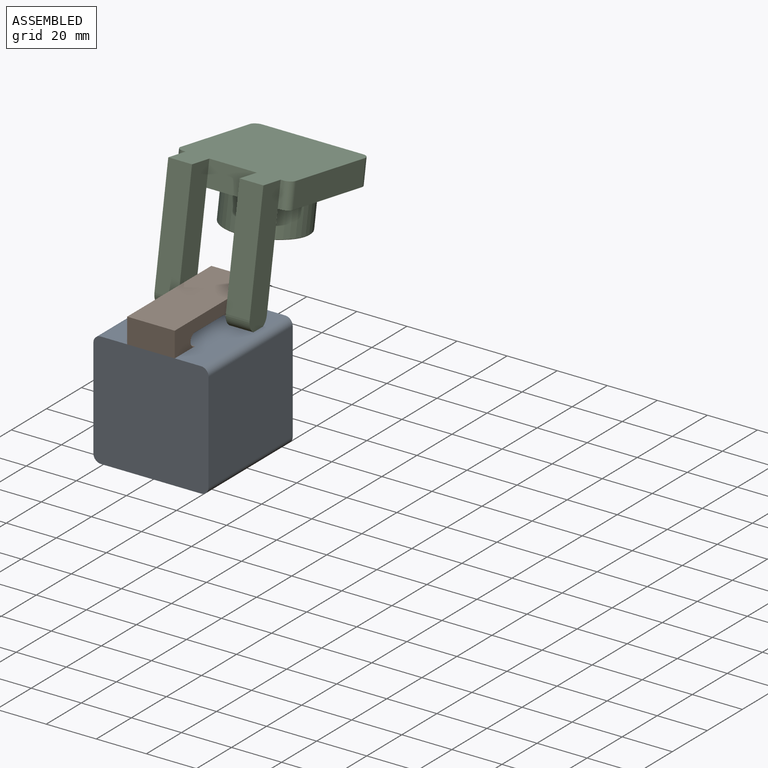
[diagram: assembled view]
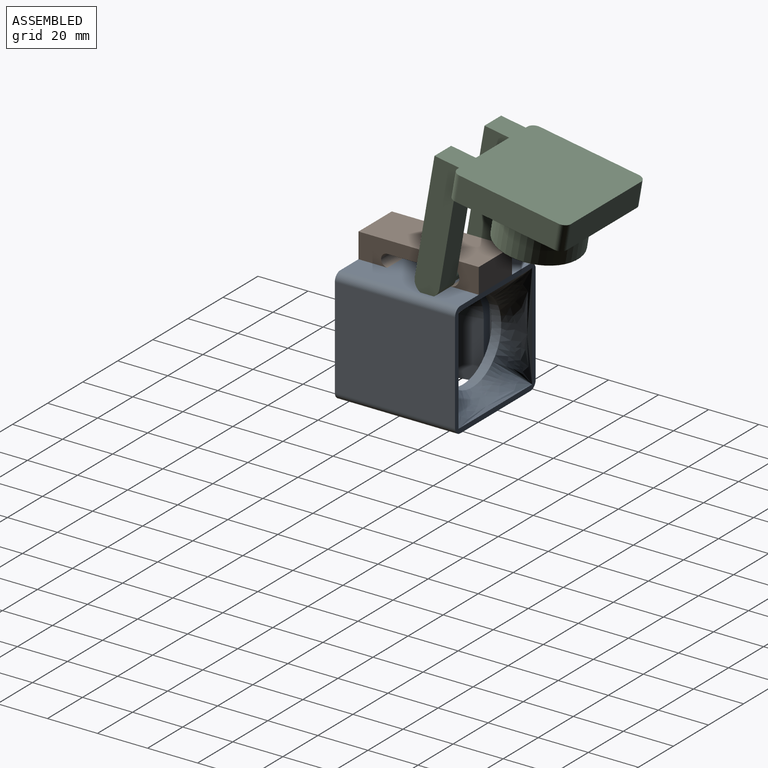
[diagram: assembled view, second angle]
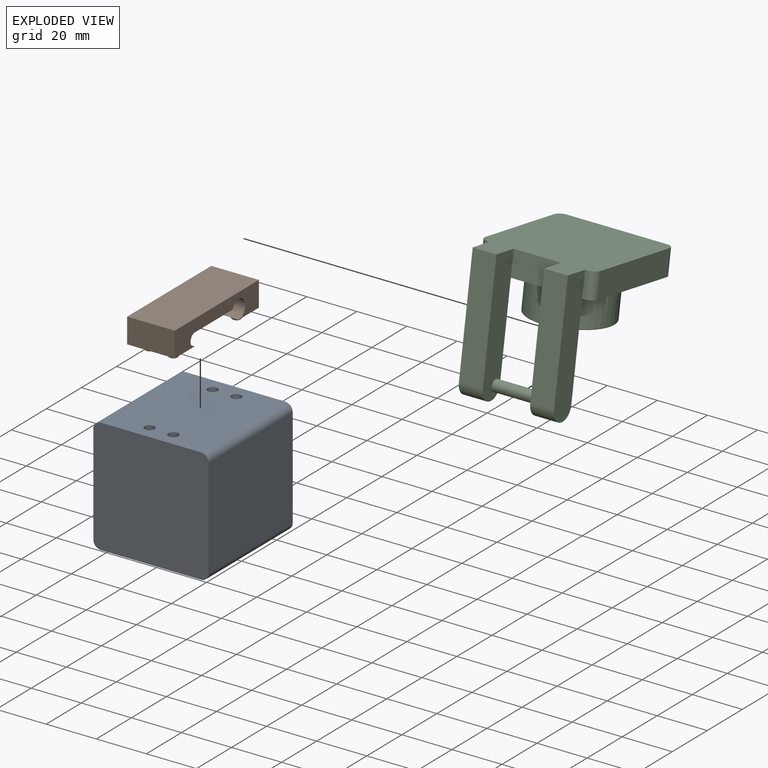
[diagram: exploded view]
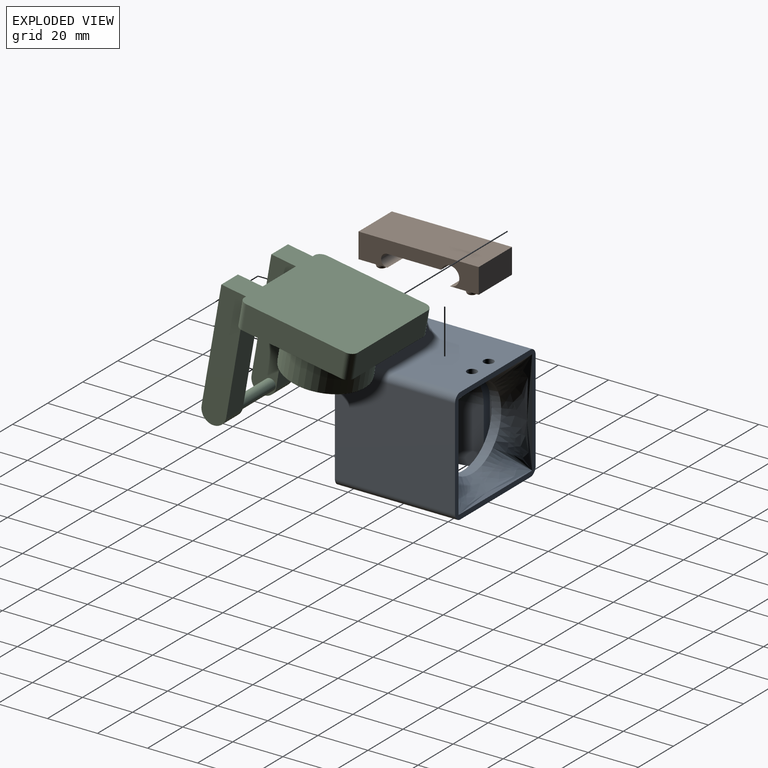
[diagram: exploded view, second angle]
ASSEMBLY  parts=3 mates=3
PART A: 36 faces, bbox 46x46x48 mm
  f0: plane 40x13mm, normal (0,-1,0), area 520mm2, adj f18,f23,f26,f35
  f1: plane 48x40mm, normal (0,1,0), area 1869.7mm2, adj f5,f18,f24,f25,f27,f29,f31,f33
  f2: plane 40x31.8mm, normal (0,-1,0), area 514.1mm2, adj f5,f7,f10,f12,f13,f14,f15,f23
  f3: plane 48x40mm, normal (1,0,0), area 1920mm2, adj f5,f18,f23,f24
  f4: plane 48x40mm, normal (-1,0,0), area 1920mm2, adj f5,f18,f25,f26
  f5: plane 46x46mm, normal (0,0,1), area 2108.3mm2, adj f1,f2,f3,f4,f23,f24,f25,f26
  f6: cylinder r=20mm len=40mm, axis (0,0,-1), area 201.1mm2, adj f7,f11,f16,f35
  f7: plane 43x40mm, normal (0,0,-1), area 361.7mm2, adj f2,f6,f8,f11,f12,f15,f16
  f8: cone r=16.5mm half-angle=10.9deg, axis (0,0,-1), area 1081.4mm2, adj f7,f9,f12,f15
  f9: cone r=11.9mm half-angle=56deg, axis (0,0,-1), area 230.1mm2, adj f8,f10,f13,f14
  f10: plane 27.5x9mm, normal (0,0,-1), area 238.8mm2, adj f2,f9,f13,f14
  f11: plane 23x3.2mm, normal (1,0,0), area 73.6mm2, adj f6,f7,f26,f35
  f12: plane 23.8x23mm, normal (0.98,0,-0.19), area 557.5mm2, adj f2,f7,f8,f13
  f13: plane 23x7.4mm, normal (0.56,0,-0.83), area 205.4mm2, adj f2,f9,f10,f12
  f14: plane 23x7.4mm, normal (-0.56,0,-0.83), area 205.4mm2, adj f2,f9,f10,f15
  f15: plane 23.8x23mm, normal (-0.98,0,-0.19), area 557.5mm2, adj f2,f7,f8,f14
  f16: plane 23x3.2mm, normal (-1,0,0), area 73.6mm2, adj f6,f7,f23,f35
  f17: cylinder r=16.5mm len=33mm, axis (0,0,1), area 394mm2, adj f19,f20,f21,f22,f35
  f18: plane 46x46mm, normal (0,0,-1), area 344.3mm2, adj f0,f1,f3,f4,f19,f20,f21,f22
  f19: bspline ~42x9.33mm, area 386.2mm2, adj f17,f18,f20,f22
  f20: bspline ~42x9.33mm, area 386.2mm2, adj f17,f18,f19,f21
  f21: bspline ~42x9.33mm, area 386.2mm2, adj f17,f18,f20,f22
  f22: bspline ~42x9.33mm, area 386.2mm2, adj f17,f18,f19,f21
  f23: cylinder r=3mm len=48mm, axis (0,0,1), area 226.2mm2, adj f0,f2,f3,f5,f16,f18
  f24: cylinder r=3mm len=48mm, axis (0,0,-1), area 226.2mm2, adj f1,f3,f5,f18
  f25: cylinder r=3mm len=48mm, axis (0,0,1), area 226.2mm2, adj f1,f4,f5,f18
  f26: cylinder r=3mm len=48mm, axis (0,0,-1), area 226.2mm2, adj f0,f2,f4,f5,f11,f18
  f27: cylinder r=2mm len=4mm, axis (0,1,0), area 44mm2, adj f1,f28
  f28: plane 4x4mm, normal (0,1,0), area 12.6mm2, adj f27
  f29: cylinder r=2mm len=4mm, axis (0,1,0), area 44mm2, adj f1,f30
  f30: plane 4x4mm, normal (0,1,0), area 12.6mm2, adj f29
  f31: cylinder r=2mm len=4mm, axis (0,1,0), area 44mm2, adj f1,f32
  f32: plane 4x4mm, normal (0,1,0), area 12.6mm2, adj f31
  f33: cylinder r=2mm len=4mm, axis (0,1,0), area 44mm2, adj f1,f34
  f34: plane 4x4mm, normal (0,1,0), area 12.6mm2, adj f33
  f35: plane 43x40mm, normal (0,0,1), area 693mm2, adj f0,f6,f11,f16,f17
PART B: 22 faces, bbox 19x48x13 mm
  f0: plane 21.46x19mm, normal (0,0,-1), area 407.8mm2, adj f1,f4,f20,f21
  f1: plane 48x10mm, normal (1,0,0), area 316.6mm2, adj f0,f2,f3,f5,f6,f7,f20,f21
  f2: plane 19x11.5mm, normal (0,0,-1), area 193.4mm2, adj f1,f4,f5,f12,f14,f21
  f3: plane 19x10mm, normal (0,1,0), area 190mm2, adj f1,f4,f6,f7
  f4: plane 48x10mm, normal (-1,0,0), area 316.6mm2, adj f0,f2,f3,f5,f6,f7,f20,f21
  f5: plane 19x10mm, normal (0,-1,0), area 190mm2, adj f1,f2,f4,f6
  f6: plane 48x19mm, normal (0,0,1), area 912mm2, adj f1,f3,f4,f5
  f7: plane 19x11.5mm, normal (0,0,-1), area 193.4mm2, adj f1,f3,f4,f8,f10,f20
  f8: cylinder r=2mm len=4mm, axis (0,0,1), area 25.1mm2, adj f7,f19
  f9: plane 2x2mm, normal (0,0,-1), area 3.1mm2, adj f19
  f10: cylinder r=2mm len=4mm, axis (0,0,1), area 25.1mm2, adj f7,f18
  f11: plane 2x2mm, normal (0,0,-1), area 3.1mm2, adj f18
  f12: cylinder r=2mm len=4mm, axis (0,0,1), area 25.1mm2, adj f2,f17
  f13: plane 2x2mm, normal (0,0,-1), area 3.1mm2, adj f17
  f14: cylinder r=2mm len=4mm, axis (0,0,1), area 25.1mm2, adj f2,f16
  f15: plane 2x2mm, normal (0,0,-1), area 3.1mm2, adj f16
  f16: torus R=1mm, axis (0,0,1), area 16.2mm2, adj f14,f15
  f17: torus R=1mm, axis (0,0,1), area 16.2mm2, adj f12,f13
  f18: torus R=1mm, axis (0,0,1), area 16.2mm2, adj f10,f11
  f19: torus R=1mm, axis (0,0,1), area 16.2mm2, adj f8,f9
  f20: cylinder r=2.5mm len=19mm, axis (-1,0,0), area 149.2mm2, adj f0,f1,f4,f7
  f21: cylinder r=3.75mm len=19mm, axis (1,0,0), area 311.5mm2, adj f0,f1,f2,f4
PART C: 26 faces, bbox 46x56x51.5 mm
  f0: plane 10x1mm, normal (0,1,0), area 10mm2, adj f6,f7,f8,f20
  f1: plane 19x10mm, normal (0,1,0), area 190mm2, adj f6,f7,f16,f21
  f2: plane 10x1mm, normal (0,1,0), area 10mm2, adj f6,f7,f9,f15
  f3: plane 40x10mm, normal (1,0,0), area 400mm2, adj f6,f7,f8,f10
  f4: plane 40x10mm, normal (0,-1,0), area 400mm2, adj f6,f7,f10,f11
  f5: plane 40x10mm, normal (-1,0,0), area 400mm2, adj f6,f7,f9,f11
  f6: plane 56x46mm, normal (0,0,-1), area 2298.3mm2, adj f0,f1,f2,f3,f4,f5,f8,f9
  f7: plane 46x46mm, normal (0,0,1), area 1304mm2, adj f0,f1,f2,f3,f4,f5,f8,f9
  f8: cylinder r=3mm len=10mm, axis (0,0,-1), area 47.1mm2, adj f0,f3,f6,f7
  f9: cylinder r=3mm len=10mm, axis (0,0,1), area 47.1mm2, adj f2,f5,f6,f7
  f10: cylinder r=3mm len=10mm, axis (0,0,1), area 47.1mm2, adj f3,f4,f6,f7
  f11: cylinder r=3mm len=10mm, axis (0,0,-1), area 47.1mm2, adj f4,f5,f6,f7
  f12: plane 36.5x9.5mm, normal (0,-1,0), area 346.8mm2, adj f7,f13,f15,f16
  f13: cylinder r=5mm len=10mm, axis (1,0,0), area 149.2mm2, adj f12,f14,f15,f16
  f14: plane 46.5x9.5mm, normal (0,1,0), area 441.8mm2, adj f6,f13,f15,f16
  f15: plane 51.5x10mm, normal (-1,0,0), area 504.3mm2, adj f2,f6,f12,f13,f14
  f16: plane 51.5x10mm, normal (1,0,0), area 488.4mm2, adj f1,f6,f12,f13,f14,f22
  f17: plane 36.5x9.5mm, normal (0,-1,0), area 346.8mm2, adj f7,f19,f20,f21
  f18: plane 46.5x9.5mm, normal (0,1,0), area 441.8mm2, adj f6,f19,f20,f21
  f19: cylinder r=5mm len=10mm, axis (-1,0,0), area 149.2mm2, adj f17,f18,f20,f21
  f20: plane 51.5x10mm, normal (1,0,0), area 504.3mm2, adj f0,f6,f17,f18,f19
  f21: plane 51.5x10mm, normal (-1,0,0), area 488.4mm2, adj f1,f6,f17,f18,f19,f22
  f22: cylinder r=2.25mm len=19mm, axis (-1,0,0), area 268.6mm2, adj f16,f21
  f23: cylinder r=16mm len=32mm, axis (0,0,1), area 1487.9mm2, adj f7,f25
  f24: plane 31.6x31.6mm, normal (0,0,1), area 784.3mm2, adj f25
  f25: cone r=15.8mm half-angle=45deg, axis (0,0,-1), area 28.3mm2, adj f23,f24
PLACE A rot(axis=(1,0,0),90deg) t=(0,8.87,-21.5)mm fixed
PLACE B rot(axis=(0,0,1),180deg) t=(0,1.74,1)mm
PLACE C rot(axis=(1,0,0),170.2deg) t=(0,41.98,21.12)mm
MATE planar B.f14 <-> A.f31  axis (0,0,-1) through (4.75,18.87,1.5)mm
MATE revolute C.f22 <-> B.f21  axis (-1,0,0) through (-9.5,13.37,5.25)mm
MATE planar B.f3 <-> A.f8  axis (0,-1,0) through (0,-23.13,6.5)mm
